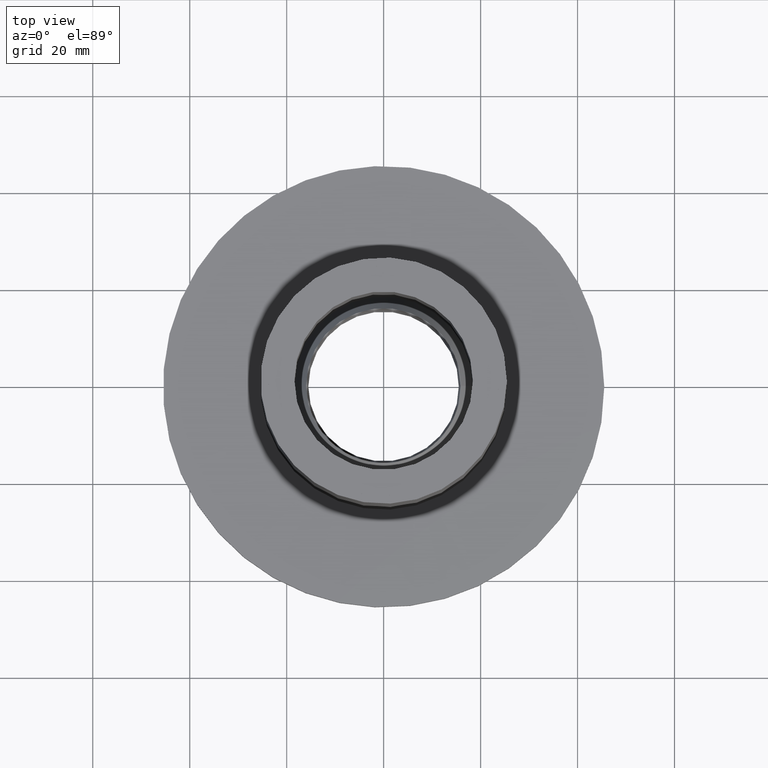
[diagram: clean part render]
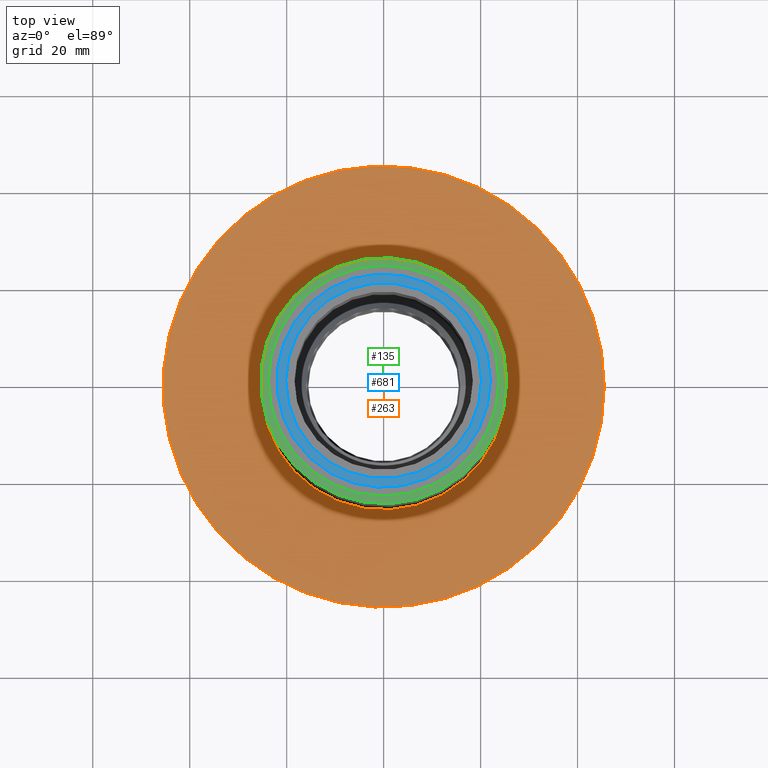
[diagram: same view with three faces highlighted in distinct colors, each labeled with its STEP entity id]
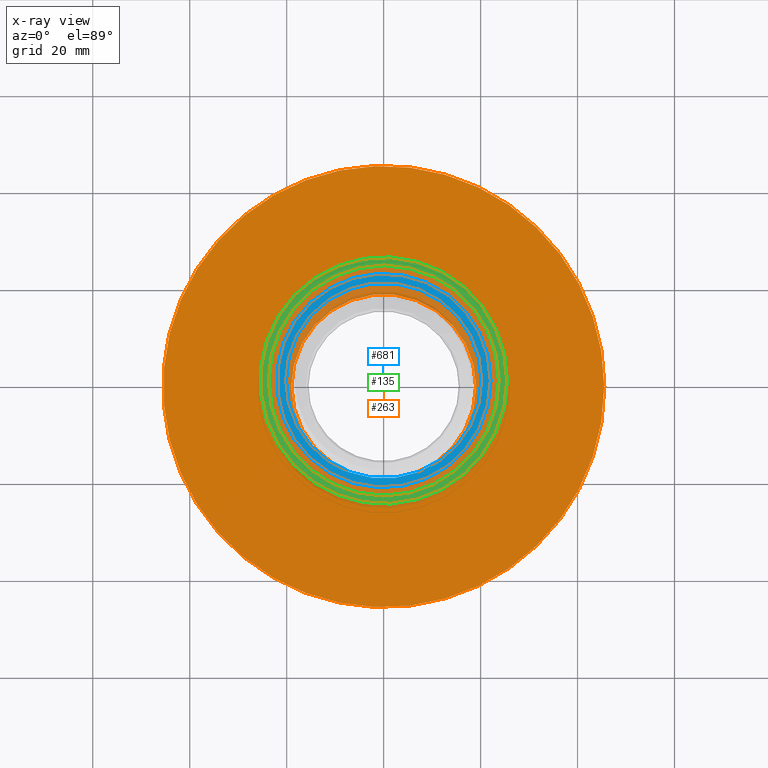
[diagram: x-ray of the same camera — body ghosted, the three highlighted faces saturated]
A machine part, top view with three faces highlighted in distinct colors.
The next image is the same camera in x-ray (body ghosted, the three faces saturated) — at least one of them is partly hidden behind the body in this view.
Their STEP definitions:

[orange] entity #263 — the highlighted planar face has unit normal (0, 0, -1).
#201=CARTESIAN_POINT('',(19.050000000000004,2.332952E-015,0.0));
#202=VERTEX_POINT('',#201);
#203=CARTESIAN_POINT('',(0.0,0.0,0.0));
#204=DIRECTION('',(0.0,0.0,-1.0));
#205=DIRECTION('',(-1.0,0.0,0.0));
#206=AXIS2_PLACEMENT_3D('',#203,#204,#205);
#207=CIRCLE('',#206,19.050000000000004);
#208=EDGE_CURVE('',#202,#202,#207,.T.);
#229=CARTESIAN_POINT('',(45.5,5.572143E-015,0.0));
#230=VERTEX_POINT('',#229);
#231=CARTESIAN_POINT('',(0.0,0.0,0.0));
#232=DIRECTION('',(0.0,0.0,-1.0));
#233=DIRECTION('',(-1.0,0.0,0.0));
#234=AXIS2_PLACEMENT_3D('',#231,#232,#233);
#235=CIRCLE('',#234,45.5);
#236=EDGE_CURVE('',#230,#230,#235,.T.);
#252=CARTESIAN_POINT('',(0.0,0.0,0.0));
#253=DIRECTION('',(0.0,0.0,-1.0));
#254=DIRECTION('',(-1.0,0.0,0.0));
#255=AXIS2_PLACEMENT_3D('',#252,#253,#254);
#256=PLANE('',#255);
#257=ORIENTED_EDGE('',*,*,#236,.F.);
#258=EDGE_LOOP('',(#257));
#259=FACE_OUTER_BOUND('',#258,.T.);
#260=ORIENTED_EDGE('',*,*,#208,.T.);
#261=EDGE_LOOP('',(#260));
#262=FACE_BOUND('',#261,.T.);
#263=ADVANCED_FACE('',(#259,#262),#256,.F.);

[blue] entity #681 — the highlighted planar face has unit normal (0, 0, -1).
#627=CARTESIAN_POINT('',(20.199999999999999,2.473787E-015,70.0));
#628=VERTEX_POINT('',#627);
#629=CARTESIAN_POINT('',(0.0,0.0,70.0));
#630=DIRECTION('',(0.0,0.0,-1.0));
#631=DIRECTION('',(-1.0,0.0,0.0));
#632=AXIS2_PLACEMENT_3D('',#629,#630,#631);
#633=CIRCLE('',#632,20.199999999999999);
#634=EDGE_CURVE('',#628,#628,#633,.T.);
#662=CARTESIAN_POINT('',(0.0,0.0,70.0));
#663=DIRECTION('',(0.0,0.0,-1.0));
#664=DIRECTION('',(-1.0,0.0,0.0));
#665=AXIS2_PLACEMENT_3D('',#662,#663,#664);
#666=PLANE('',#665);
#667=CARTESIAN_POINT('',(22.0,2.694223E-015,70.0));
#668=VERTEX_POINT('',#667);
#669=CARTESIAN_POINT('',(0.0,0.0,70.0));
#670=DIRECTION('',(0.0,0.0,-1.0));
#671=DIRECTION('',(-1.0,0.0,0.0));
#672=AXIS2_PLACEMENT_3D('',#669,#670,#671);
#673=CIRCLE('',#672,22.0);
#674=EDGE_CURVE('',#668,#668,#673,.T.);
#675=ORIENTED_EDGE('',*,*,#674,.F.);
#676=EDGE_LOOP('',(#675));
#677=FACE_OUTER_BOUND('',#676,.T.);
#678=ORIENTED_EDGE('',*,*,#634,.T.);
#679=EDGE_LOOP('',(#678));
#680=FACE_BOUND('',#679,.T.);
#681=ADVANCED_FACE('',(#677,#680),#666,.F.);

[green] entity #135 — the highlighted planar face has unit normal (0, 0, -1).
#73=CARTESIAN_POINT('',(23.800000000000004,2.914659E-015,70.0));
#74=VERTEX_POINT('',#73);
#75=CARTESIAN_POINT('',(0.0,0.0,70.0));
#76=DIRECTION('',(0.0,0.0,-1.0));
#77=DIRECTION('',(-1.0,0.0,0.0));
#78=AXIS2_PLACEMENT_3D('',#75,#76,#77);
#79=CIRCLE('',#78,23.800000000000004);
#80=EDGE_CURVE('',#74,#74,#79,.T.);
#101=CARTESIAN_POINT('',(25.399999999999999,3.110603E-015,70.0));
#102=VERTEX_POINT('',#101);
#103=CARTESIAN_POINT('',(0.0,0.0,70.0));
#104=DIRECTION('',(0.0,0.0,-1.0));
#105=DIRECTION('',(-1.0,0.0,0.0));
#106=AXIS2_PLACEMENT_3D('',#103,#104,#105);
#107=CIRCLE('',#106,25.399999999999999);
#108=EDGE_CURVE('',#102,#102,#107,.T.);
#124=CARTESIAN_POINT('',(0.0,0.0,70.0));
#125=DIRECTION('',(0.0,0.0,-1.0));
#126=DIRECTION('',(-1.0,0.0,0.0));
#127=AXIS2_PLACEMENT_3D('',#124,#125,#126);
#128=PLANE('',#127);
#129=ORIENTED_EDGE('',*,*,#108,.F.);
#130=EDGE_LOOP('',(#129));
#131=FACE_OUTER_BOUND('',#130,.T.);
#132=ORIENTED_EDGE('',*,*,#80,.T.);
#133=EDGE_LOOP('',(#132));
#134=FACE_BOUND('',#133,.T.);
#135=ADVANCED_FACE('',(#131,#134),#128,.F.);